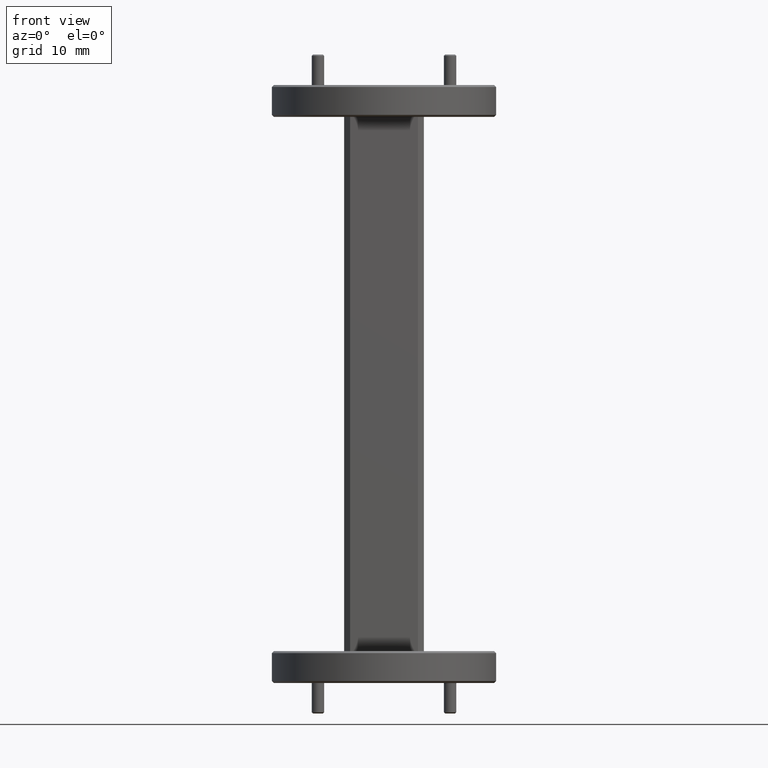
[diagram: clean part render]
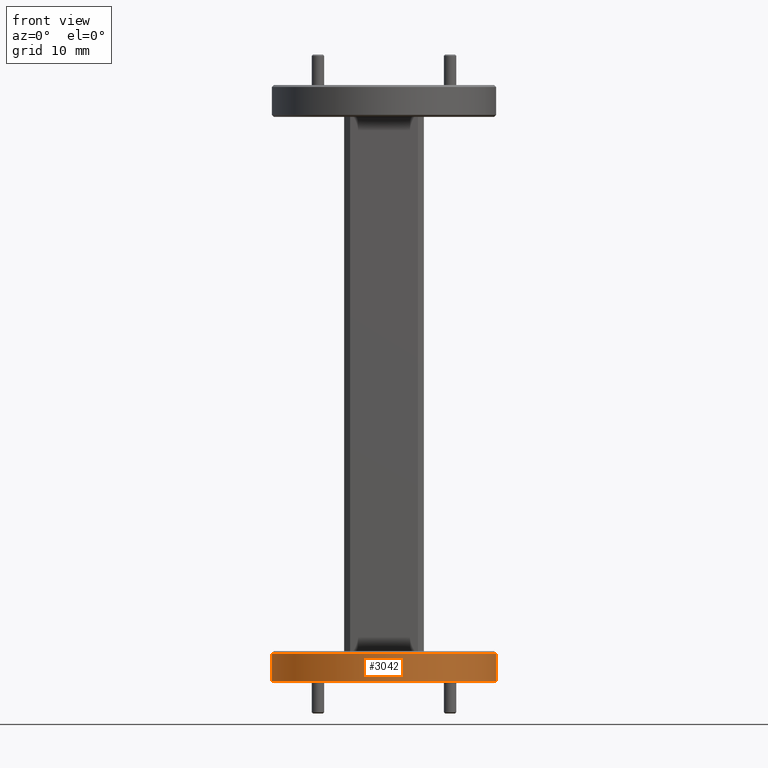
[diagram: same view with one face highlighted and labeled with its STEP entity id]
A machine part, front view. The second image highlights one B-rep face of the part: STEP entity #3042.
In plain terms, the highlighted cylindrical surface (partial cylindrical patch) has radius 14.2875 mm, axis along (0, 0, -1).
Its self-contained STEP definition (entity closure, byte-faithful):
#429 = AXIS2_PLACEMENT_3D ( 'NONE', #5824, #7226, #9525 ) ;
#814 = DIRECTION ( 'NONE',  ( -1.000000000000000000, 0.000000000000000000, 0.000000000000000000 ) ) ;
#843 = EDGE_CURVE ( 'NONE', #8621, #2243, #4745, .T. ) ;
#1333 = DIRECTION ( 'NONE',  ( -1.000000000000000000, 0.000000000000000000, 0.000000000000000000 ) ) ;
#1505 = VERTEX_POINT ( 'NONE', #4795 ) ;
#2243 = VERTEX_POINT ( 'NONE', #8169 ) ;
#2427 = CYLINDRICAL_SURFACE ( 'NONE', #2644, 0.5625000000000001110 ) ;
#2644 = AXIS2_PLACEMENT_3D ( 'NONE', #9337, #6880, #814 ) ;
#2908 = CARTESIAN_POINT ( 'NONE',  ( -0.5625000000000001110, 0.000000000000000000, -1.489999999999999325 ) ) ;
#3042 = ADVANCED_FACE ( 'NONE', ( #4589 ), #2427, .T. ) ;
#3137 = DIRECTION ( 'NONE',  ( 0.000000000000000000, 0.000000000000000000, -1.000000000000000000 ) ) ;
#3404 = ORIENTED_EDGE ( 'NONE', *, *, #9040, .F. ) ;
#3476 = EDGE_LOOP ( 'NONE', ( #3404, #7099, #5020, #6167 ) ) ;
#4236 = CIRCLE ( 'NONE', #9203, 0.5625000000000001110 ) ;
#4336 = LINE ( 'NONE', #7388, #4766 ) ;
#4554 = VERTEX_POINT ( 'NONE', #5181 ) ;
#4589 = FACE_OUTER_BOUND ( 'NONE', #3476, .T. ) ;
#4745 = CIRCLE ( 'NONE', #429, 0.5625000000000001110 ) ;
#4766 = VECTOR ( 'NONE', #5189, 39.37007874015748143 ) ;
#4795 = CARTESIAN_POINT ( 'NONE',  ( 0.5625000000000001110, 6.888638245203861944E-17, -1.349999999999999423 ) ) ;
#5020 = ORIENTED_EDGE ( 'NONE', *, *, #7462, .T. ) ;
#5181 = CARTESIAN_POINT ( 'NONE',  ( -0.5625000000000001110, 0.000000000000000000, -1.349999999999999423 ) ) ;
#5189 = DIRECTION ( 'NONE',  ( 0.000000000000000000, 0.000000000000000000, -1.000000000000000000 ) ) ;
#5306 = EDGE_CURVE ( 'NONE', #1505, #4554, #4236, .T. ) ;
#5824 = CARTESIAN_POINT ( 'NONE',  ( 0.000000000000000000, 0.000000000000000000, -1.489999999999999325 ) ) ;
#5956 = DIRECTION ( 'NONE',  ( 0.000000000000000000, 0.000000000000000000, -1.000000000000000000 ) ) ;
#6167 = ORIENTED_EDGE ( 'NONE', *, *, #843, .T. ) ;
#6202 = LINE ( 'NONE', #8347, #8099 ) ;
#6880 = DIRECTION ( 'NONE',  ( 0.000000000000000000, 0.000000000000000000, -1.000000000000000000 ) ) ;
#7099 = ORIENTED_EDGE ( 'NONE', *, *, #5306, .T. ) ;
#7226 = DIRECTION ( 'NONE',  ( -0.000000000000000000, -0.000000000000000000, 1.000000000000000000 ) ) ;
#7388 = CARTESIAN_POINT ( 'NONE',  ( 0.5625000000000001110, 6.888638245203861944E-17, -1.340000000000000080 ) ) ;
#7462 = EDGE_CURVE ( 'NONE', #4554, #8621, #6202, .T. ) ;
#8099 = VECTOR ( 'NONE', #3137, 39.37007874015748143 ) ;
#8169 = CARTESIAN_POINT ( 'NONE',  ( 0.5625000000000001110, 6.888638245203861944E-17, -1.489999999999999325 ) ) ;
#8347 = CARTESIAN_POINT ( 'NONE',  ( -0.5625000000000001110, 0.000000000000000000, -1.340000000000000080 ) ) ;
#8621 = VERTEX_POINT ( 'NONE', #2908 ) ;
#9040 = EDGE_CURVE ( 'NONE', #1505, #2243, #4336, .T. ) ;
#9203 = AXIS2_PLACEMENT_3D ( 'NONE', #9757, #5956, #1333 ) ;
#9337 = CARTESIAN_POINT ( 'NONE',  ( 0.000000000000000000, 0.000000000000000000, -1.340000000000000080 ) ) ;
#9525 = DIRECTION ( 'NONE',  ( 1.000000000000000000, 0.000000000000000000, 0.000000000000000000 ) ) ;
#9757 = CARTESIAN_POINT ( 'NONE',  ( 0.000000000000000000, 0.000000000000000000, -1.349999999999999423 ) ) ;